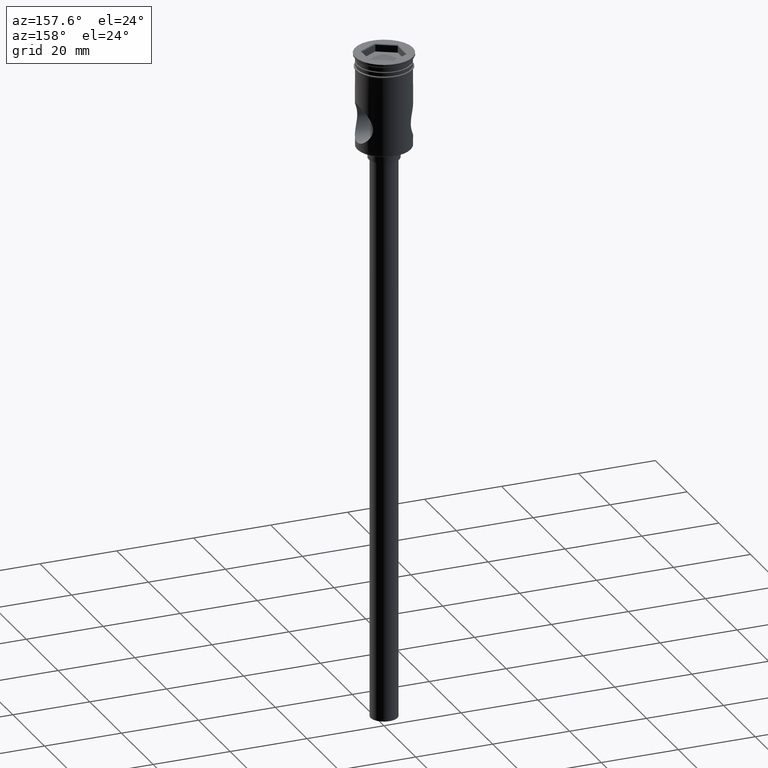
[diagram: clean part render]
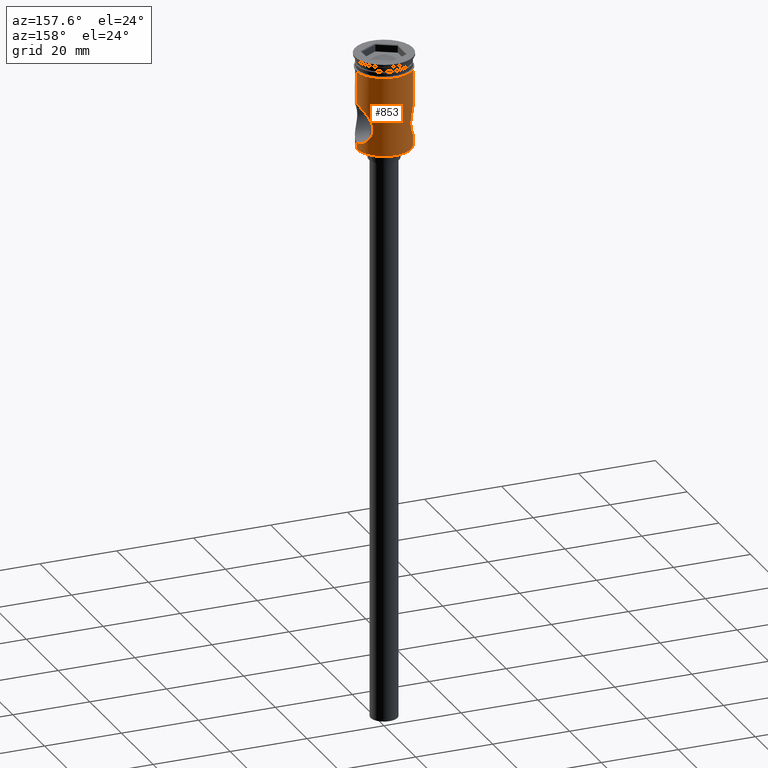
[diagram: same view with one face highlighted and labeled with its STEP entity id]
A machine part, auxiliary view. The second image highlights one B-rep face of the part: STEP entity #853.
In plain terms, the highlighted cylindrical surface (edge-blend (fillet) strip) has radius 7 mm, axis along (-0, -0, 1).
Its self-contained STEP definition (entity closure, byte-faithful):
#2 = CARTESIAN_POINT ( 'NONE',  ( 5.511313949235637999, 4.316828484673398414, -14.97205977871709415 ) ) ;
#39 = VERTEX_POINT ( 'NONE', #1285 ) ;
#46 = LINE ( 'NONE', #748, #955 ) ;
#48 = CARTESIAN_POINT ( 'NONE',  ( 0.000000000000000000, 0.000000000000000000, -3.799999999999998490 ) ) ;
#60 = DIRECTION ( 'NONE',  ( -0.000000000000000000, -0.000000000000000000, 1.000000000000000000 ) ) ;
#75 = CARTESIAN_POINT ( 'NONE',  ( 6.878409767648492767, 1.341070845160087455, -22.32854432384573684 ) ) ;
#80 = EDGE_CURVE ( 'NONE', #1168, #367, #1132, .T. ) ;
#92 = CARTESIAN_POINT ( 'NONE',  ( 6.999999999999997335, 0.3402173002877514896, -12.50000000000000178 ) ) ;
#98 = CARTESIAN_POINT ( 'NONE',  ( -5.220660888952586731, 4.663868933387905535, -19.30946716320038448 ) ) ;
#106 = CARTESIAN_POINT ( 'NONE',  ( -5.766850669963372589, 3.973799787454027399, -14.44906282454845936 ) ) ;
#121 = DIRECTION ( 'NONE',  ( -0.000000000000000000, -0.000000000000000000, 1.000000000000000000 ) ) ;
#149 = B_SPLINE_CURVE_WITH_KNOTS ( 'NONE', 3,
 ( #317, #788, #1133, #75, #1018, #1325, #1113, #532, #417, #992, #1451, #444, #905, #1353, #321, #769, #1348, #678, #1246, #212, #1229, #1342, #547, #311, #777, #1466, #781, #1235, #1240, #2, #328, #1044, #1394, #472, #909, #917, #586, #795, #357, #1492, #92, #1367 ),
 .UNSPECIFIED., .F., .F.,
 ( 4, 2, 2, 2, 2, 2, 2, 2, 2, 2, 2, 2, 2, 2, 2, 2, 2, 2, 2, 2, 4 ),
 ( 0.000000000000000000, 0.001017778397128055699, 0.002035556794256111399, 0.003053335191384167098, 0.004071113588512222797, 0.005088891985640278497, 0.006106670382768334196, 0.006615559581332362479, 0.007124448779896391630, 0.007633337978460419913, 0.008142227177024449064, 0.008651116375588475613, 0.009160005574152505631, 0.01017778397128055352, 0.01068667316984457834, 0.01119556236840860142, 0.01221334076553664411, 0.01323111916266468679, 0.01424889755979273122, 0.01526667595692077217, 0.01628445435404881486 ),
 .UNSPECIFIED. ) ;
#178 = AXIS2_PLACEMENT_3D ( 'NONE', #188, #665, #987 ) ;
#185 = EDGE_CURVE ( 'NONE', #500, #367, #46, .T. ) ;
#188 = CARTESIAN_POINT ( 'NONE',  ( 0.000000000000000000, 0.000000000000000000, -24.29999999999999361 ) ) ;
#190 = ORIENTED_EDGE ( 'NONE', *, *, #1077, .F. ) ;
#199 = ORIENTED_EDGE ( 'NONE', *, *, #612, .T. ) ;
#212 = CARTESIAN_POINT ( 'NONE',  ( 4.907798977527274786, 4.991404953799127853, -17.83934536331389609 ) ) ;
#213 = CARTESIAN_POINT ( 'NONE',  ( -6.464316942199904936, 2.689506414539494905, -13.28192429162108112 ) ) ;
#219 = CARTESIAN_POINT ( 'NONE',  ( -4.899114737268973840, 4.999867480858277702, -17.67548696206737446 ) ) ;
#225 = CARTESIAN_POINT ( 'NONE',  ( -6.805936086033878674, 1.666627172151767367, -22.22542051994379975 ) ) ;
#234 = CARTESIAN_POINT ( 'NONE',  ( -5.385323867458159164, 4.475062125113562495, -19.75326393182406903 ) ) ;
#283 = VECTOR ( 'NONE', #780, 1000.000000000000000 ) ;
#311 = CARTESIAN_POINT ( 'NONE',  ( 4.943068801648156985, 4.956478286556077251, -16.82026444464511528 ) ) ;
#317 = CARTESIAN_POINT ( 'NONE',  ( 6.999999999999996447, 0.000000000000000000, -22.50000000000000355 ) ) ;
#321 = CARTESIAN_POINT ( 'NONE',  ( 5.167013818061234609, 4.722976424013229035, -19.14947799901278813 ) ) ;
#322 = CARTESIAN_POINT ( 'NONE',  ( -5.169488514657019529, 4.720270986420918469, -19.15718069384215738 ) ) ;
#328 = CARTESIAN_POINT ( 'NONE',  ( 5.574789878013862499, 4.234804902448966679, -14.83709141481580396 ) ) ;
#329 = CARTESIAN_POINT ( 'NONE',  ( -6.161707611671310758, 3.331633962589205744, -13.75836233797496533 ) ) ;
#334 = CARTESIAN_POINT ( 'NONE',  ( -4.898713443770691178, 5.000260666815379729, -17.16047788894091752 ) ) ;
#340 = CARTESIAN_POINT ( 'NONE',  ( -5.036472174957491887, 4.861708977790190289, -18.67976090952791779 ) ) ;
#357 = CARTESIAN_POINT ( 'NONE',  ( 6.877389265331919077, 1.346411915329735587, -12.67290639567982424 ) ) ;
#360 = EDGE_CURVE ( 'NONE', #39, #1259, #425, .T. ) ;
#367 = VERTEX_POINT ( 'NONE', #880 ) ;
#381 = EDGE_CURVE ( 'NONE', #1259, #875, #149, .T. ) ;
#403 = DIRECTION ( 'NONE',  ( 1.000000000000000000, 0.000000000000000000, 0.000000000000000000 ) ) ;
#417 = CARTESIAN_POINT ( 'NONE',  ( 6.162478002351688744, 3.330174978408510178, -21.24288214826860255 ) ) ;
#424 = ORIENTED_EDGE ( 'NONE', *, *, #80, .F. ) ;
#425 = LINE ( 'NONE', #671, #933 ) ;
#444 = CARTESIAN_POINT ( 'NONE',  ( 5.507665137062537575, 4.325854713192930134, -20.02701862118371778 ) ) ;
#445 = CARTESIAN_POINT ( 'NONE',  ( -5.067898708447169831, 4.829642785058294585, -16.16266470123420618 ) ) ;
#451 = CARTESIAN_POINT ( 'NONE',  ( -6.877725454229275392, 1.345421322269137576, -12.67242512543099231 ) ) ;
#462 = CARTESIAN_POINT ( 'NONE',  ( -6.293637646572689093, 3.077855022031981580, -21.45331948693545954 ) ) ;
#472 = CARTESIAN_POINT ( 'NONE',  ( 6.163412594259888522, 3.328521687271349894, -13.75554919995812675 ) ) ;
#477 = CIRCLE ( 'NONE', #178, 6.999999999999996447 ) ;
#500 = VERTEX_POINT ( 'NONE', #514 ) ;
#514 = CARTESIAN_POINT ( 'NONE',  ( -6.999999999999996447, 8.572533153570467989E-16, -12.50000000000000000 ) ) ;
#518 = DIRECTION ( 'NONE',  ( -0.000000000000000000, -0.000000000000000000, 1.000000000000000000 ) ) ;
#532 = CARTESIAN_POINT ( 'NONE',  ( 6.288925692808939871, 3.087718830034457795, -21.44587702701452514 ) ) ;
#547 = CARTESIAN_POINT ( 'NONE',  ( 4.908080539807011533, 4.991127287266563961, -17.15741302911732546 ) ) ;
#548 = CARTESIAN_POINT ( 'NONE',  ( -6.975075911005133023, 0.6793982586713426253, -12.53471494170770306 ) ) ;
#568 = CARTESIAN_POINT ( 'NONE',  ( -5.510292512720397440, 4.322635034373780272, -20.03289028278534190 ) ) ;
#577 = CARTESIAN_POINT ( 'NONE',  ( -6.878322084194203434, 1.341499001965813509, -22.32841954660989003 ) ) ;
#586 = CARTESIAN_POINT ( 'NONE',  ( 6.627237468456898206, 2.276106889563763946, -13.03576710784931514 ) ) ;
#610 = ORIENTED_EDGE ( 'NONE', *, *, #381, .F. ) ;
#612 = EDGE_CURVE ( 'NONE', #39, #1494, #477, .T. ) ;
#622 = CARTESIAN_POINT ( 'NONE',  ( -6.999999999999996447, 8.572527594031468259E-16, 0.000000000000000000 ) ) ;
#648 = VECTOR ( 'NONE', #1090, 1000.000000000000000 ) ;
#654 = ORIENTED_EDGE ( 'NONE', *, *, #185, .T. ) ;
#661 = CARTESIAN_POINT ( 'NONE',  ( 6.999999999999996447, 0.000000000000000000, 0.000000000000000000 ) ) ;
#665 = DIRECTION ( 'NONE',  ( -0.000000000000000000, -0.000000000000000000, 1.000000000000000000 ) ) ;
#671 = CARTESIAN_POINT ( 'NONE',  ( 6.999999999999996447, 0.000000000000000000, 0.000000000000000000 ) ) ;
#678 = CARTESIAN_POINT ( 'NONE',  ( 4.968992574149714514, 4.930653397323763620, -18.34649837096316460 ) ) ;
#679 = CARTESIAN_POINT ( 'NONE',  ( -5.508043593449563957, 4.325402544629331381, -14.97211645318934004 ) ) ;
#684 = CARTESIAN_POINT ( 'NONE',  ( -4.908461367085028115, 4.990754227678548816, -17.84806495844127383 ) ) ;
#695 = AXIS2_PLACEMENT_3D ( 'NONE', #1401, #121, #705 ) ;
#701 = EDGE_CURVE ( 'NONE', #500, #760, #1074, .T. ) ;
#705 = DIRECTION ( 'NONE',  ( 1.000000000000000000, 0.000000000000000000, 0.000000000000000000 ) ) ;
#730 = CARTESIAN_POINT ( 'NONE',  ( -6.999999999999996447, 0.000000000000000000, -22.50000000000000355 ) ) ;
#741 = LINE ( 'NONE', #622, #648 ) ;
#748 = CARTESIAN_POINT ( 'NONE',  ( -6.999999999999996447, 8.572527594031468259E-16, 0.000000000000000000 ) ) ;
#760 = VERTEX_POINT ( 'NONE', #730 ) ;
#769 = CARTESIAN_POINT ( 'NONE',  ( 5.075160898063482584, 4.821543316883922792, -18.83416791088078668 ) ) ;
#777 = CARTESIAN_POINT ( 'NONE',  ( 4.969341922738349737, 4.930306376958238701, -16.65122617411555339 ) ) ;
#780 = DIRECTION ( 'NONE',  ( -0.000000000000000000, -0.000000000000000000, 1.000000000000000000 ) ) ;
#781 = CARTESIAN_POINT ( 'NONE',  ( 5.163543367690774488, 4.729261221067855736, -15.84511468902912590 ) ) ;
#782 = CARTESIAN_POINT ( 'NONE',  ( -6.624517184282109561, 2.266908297124829108, -13.04044276553849002 ) ) ;
#788 = CARTESIAN_POINT ( 'NONE',  ( 6.999999999999996447, 0.3448249822885355309, -22.50000000000000355 ) ) ;
#789 = CARTESIAN_POINT ( 'NONE',  ( -5.904538784229269588, 3.768631959499706863, -20.80097026480864031 ) ) ;
#795 = CARTESIAN_POINT ( 'NONE',  ( 6.806176255248581164, 1.666404458266062649, -12.77420545626974224 ) ) ;
#796 = CARTESIAN_POINT ( 'NONE',  ( -5.381635726961874866, 4.479484118326246822, -15.25543733555521264 ) ) ;
#801 = CARTESIAN_POINT ( 'NONE',  ( -6.629571276977945793, 2.268743445522608759, -21.96766699740016193 ) ) ;
#808 = CARTESIAN_POINT ( 'NONE',  ( -5.900022963542600252, 3.775732323944060553, -14.20705562262494759 ) ) ;
#853 = ADVANCED_FACE ( 'NONE', ( #1301 ), #942, .T. ) ;
#875 = VERTEX_POINT ( 'NONE', #1287 ) ;
#880 = CARTESIAN_POINT ( 'NONE',  ( -7.000000000000000000, 8.572527594031472204E-16, -3.799999999999998490 ) ) ;
#884 = CARTESIAN_POINT ( 'NONE',  ( -6.999999999999996447, 8.572527594031468259E-16, -24.29999999999999361 ) ) ;
#901 = CARTESIAN_POINT ( 'NONE',  ( -6.673734349475702210, 2.118082564557161263, -12.96778522737479733 ) ) ;
#905 = CARTESIAN_POINT ( 'NONE',  ( 5.383875121910168815, 4.476817073581178086, -19.74995831670789670 ) ) ;
#906 = CARTESIAN_POINT ( 'NONE',  ( -4.934803760294868447, 4.965557229327412614, -16.82386648148100150 ) ) ;
#909 = CARTESIAN_POINT ( 'NONE',  ( 6.290874603390947506, 3.083386249848239835, -13.55108393410666956 ) ) ;
#917 = CARTESIAN_POINT ( 'NONE',  ( 6.522179950175094554, 2.558034936992928277, -13.19213903168321522 ) ) ;
#918 = CARTESIAN_POINT ( 'NONE',  ( -6.525356721813722949, 2.550056080968596373, -21.81267208194016760 ) ) ;
#933 = VECTOR ( 'NONE', #60, 1000.000000000000000 ) ;
#942 = CYLINDRICAL_SURFACE ( 'NONE', #695, 6.999999999999996447 ) ;
#955 = VECTOR ( 'NONE', #1094, 1000.000000000000000 ) ;
#987 = DIRECTION ( 'NONE',  ( -1.000000000000000000, 0.000000000000000000, 0.000000000000000000 ) ) ;
#992 = CARTESIAN_POINT ( 'NONE',  ( 5.901369065369745037, 3.773598239158957757, -20.79532828289721635 ) ) ;
#1008 = AXIS2_PLACEMENT_3D ( 'NONE', #48, #518, #403 ) ;
#1018 = CARTESIAN_POINT ( 'NONE',  ( 6.806291652246979851, 1.665396429013261459, -22.22593952615893897 ) ) ;
#1026 = ORIENTED_EDGE ( 'NONE', *, *, #1435, .T. ) ;
#1031 = CARTESIAN_POINT ( 'NONE',  ( -5.771108096911676810, 3.967720825599827972, -20.55906820373875732 ) ) ;
#1040 = CARTESIAN_POINT ( 'NONE',  ( -6.974619610468724140, 0.6823602827348922428, -22.46463889269961456 ) ) ;
#1044 = CARTESIAN_POINT ( 'NONE',  ( 5.768304064841209389, 3.971660509004134809, -14.44639040140507724 ) ) ;
#1074 = B_SPLINE_CURVE_WITH_KNOTS ( 'NONE', 3,
 ( #1151, #1142, #548, #451, #1248, #901, #782, #1361, #213, #1473, #329, #808, #106, #679, #796, #1253, #445, #906, #334, #219, #684, #1258, #1146, #340, #1354, #322, #98, #234, #568, #1031, #789, #1486, #462, #918, #801, #225, #577, #1040, #1467, #1493 ),
 .UNSPECIFIED., .F., .F.,
 ( 4, 2, 2, 2, 2, 2, 2, 2, 2, 2, 2, 2, 2, 2, 2, 2, 2, 2, 2, 4 ),
 ( 0.01628445435404881486, 0.01730075665134460025, 0.01831705894864038217, 0.01882521009728827660, 0.01933336124593617103, 0.02034966354323195642, 0.02136596584052773834, 0.02238226813782352373, 0.02339857043511930912, 0.02441487273241509451, 0.02492302388106299241, 0.02543117502971088684, 0.02593932617835878474, 0.02644747732700668263, 0.02746377962430248537, 0.02848008192159828811, 0.02949638421889409085, 0.03051268651618989358, 0.03152898881348569632, 0.03254529111078149906 ),
 .UNSPECIFIED. ) ;
#1077 = EDGE_CURVE ( 'NONE', #875, #1168, #1463, .T. ) ;
#1090 = DIRECTION ( 'NONE',  ( -0.000000000000000000, -0.000000000000000000, 1.000000000000000000 ) ) ;
#1094 = DIRECTION ( 'NONE',  ( -0.000000000000000000, -0.000000000000000000, 1.000000000000000000 ) ) ;
#1113 = CARTESIAN_POINT ( 'NONE',  ( 6.523396179854662691, 2.555366162349213877, -21.80976297051136470 ) ) ;
#1132 = CIRCLE ( 'NONE', #1008, 6.999999999999999112 ) ;
#1133 = CARTESIAN_POINT ( 'NONE',  ( 6.974683072853315124, 0.6817536040784990536, -22.46472792027995879 ) ) ;
#1140 = CARTESIAN_POINT ( 'NONE',  ( 6.999999999999999112, 0.000000000000000000, -3.799999999999998490 ) ) ;
#1142 = CARTESIAN_POINT ( 'NONE',  ( -6.999999999999999112, 0.3397238778479505505, -12.50000000000000533 ) ) ;
#1146 = CARTESIAN_POINT ( 'NONE',  ( -4.969884412147624886, 4.929758116149196567, -18.35178336719908287 ) ) ;
#1151 = CARTESIAN_POINT ( 'NONE',  ( -6.999999999999996447, 8.572533153570467989E-16, -12.50000000000000000 ) ) ;
#1168 = VERTEX_POINT ( 'NONE', #1140 ) ;
#1182 = ORIENTED_EDGE ( 'NONE', *, *, #701, .F. ) ;
#1229 = CARTESIAN_POINT ( 'NONE',  ( 4.898875233353443548, 5.000102145928885911, -17.66716118737664232 ) ) ;
#1235 = CARTESIAN_POINT ( 'NONE',  ( 5.328862411543377142, 4.539851137495588773, -15.39859786766767336 ) ) ;
#1240 = CARTESIAN_POINT ( 'NONE',  ( 5.388400174924766084, 4.469310144529878848, -15.25261112388847806 ) ) ;
#1246 = CARTESIAN_POINT ( 'NONE',  ( 4.943019484790466045, 4.956528279916297741, -18.17978386182895179 ) ) ;
#1248 = CARTESIAN_POINT ( 'NONE',  ( -6.806988922152785726, 1.662804102803706163, -12.77304955625404048 ) ) ;
#1253 = CARTESIAN_POINT ( 'NONE',  ( -5.162336326394759922, 4.730545921691760469, -15.84900793347695647 ) ) ;
#1258 = CARTESIAN_POINT ( 'NONE',  ( -4.943863480480452210, 4.955687100658114019, -18.18552340350770891 ) ) ;
#1259 = VERTEX_POINT ( 'NONE', #1280 ) ;
#1267 = EDGE_LOOP ( 'NONE', ( #199, #1026, #1182, #654, #424, #190, #610, #1374 ) ) ;
#1280 = CARTESIAN_POINT ( 'NONE',  ( 6.999999999999996447, 0.000000000000000000, -22.50000000000000355 ) ) ;
#1285 = CARTESIAN_POINT ( 'NONE',  ( 6.999999999999996447, 0.000000000000000000, -24.29999999999999361 ) ) ;
#1287 = CARTESIAN_POINT ( 'NONE',  ( 6.999999999999996447, -5.559544561199393959E-22, -12.50000000000000000 ) ) ;
#1301 = FACE_OUTER_BOUND ( 'NONE', #1267, .T. ) ;
#1325 = CARTESIAN_POINT ( 'NONE',  ( 6.629274812495740576, 2.269772407451148055, -21.96723436692712994 ) ) ;
#1342 = CARTESIAN_POINT ( 'NONE',  ( 4.899085609211874193, 4.999896020448773015, -17.32678303492929217 ) ) ;
#1348 = CARTESIAN_POINT ( 'NONE',  ( 5.035064757863625395, 4.863162860794926878, -18.67369050689208265 ) ) ;
#1353 = CARTESIAN_POINT ( 'NONE',  ( 5.218822708204850613, 4.665928648188177874, -19.30420640014511591 ) ) ;
#1354 = CARTESIAN_POINT ( 'NONE',  ( -5.077364955457301932, 4.819225539182824924, -18.84248696074795149 ) ) ;
#1361 = CARTESIAN_POINT ( 'NONE',  ( -6.519877710032068840, 2.552311853721904278, -13.19741610699314016 ) ) ;
#1367 = CARTESIAN_POINT ( 'NONE',  ( 6.999999999999996447, -5.559544561199393959E-22, -12.50000000000000000 ) ) ;
#1374 = ORIENTED_EDGE ( 'NONE', *, *, #360, .F. ) ;
#1394 = CARTESIAN_POINT ( 'NONE',  ( 5.901355755354761534, 3.773686748851627915, -14.20466136214932007 ) ) ;
#1401 = CARTESIAN_POINT ( 'NONE',  ( 0.000000000000000000, 0.000000000000000000, 0.000000000000000000 ) ) ;
#1435 = EDGE_CURVE ( 'NONE', #1494, #760, #741, .T. ) ;
#1451 = CARTESIAN_POINT ( 'NONE',  ( 5.765831995741617533, 3.975245358282917696, -20.54897793578650678 ) ) ;
#1463 = LINE ( 'NONE', #661, #283 ) ;
#1466 = CARTESIAN_POINT ( 'NONE',  ( 5.069539922197811244, 4.827927654831068338, -16.15669568881665441 ) ) ;
#1467 = CARTESIAN_POINT ( 'NONE',  ( -6.999999999999995559, 0.3443248772558980542, -22.50000000000000000 ) ) ;
#1473 = CARTESIAN_POINT ( 'NONE',  ( -6.289754092268240449, 3.085829967940952656, -13.55283859579834527 ) ) ;
#1486 = CARTESIAN_POINT ( 'NONE',  ( -6.165209272184617006, 3.325110483998857003, -21.24734997091469424 ) ) ;
#1492 = CARTESIAN_POINT ( 'NONE',  ( 6.974267267734871822, 0.6862246212768641218, -12.53585319719852720 ) ) ;
#1493 = CARTESIAN_POINT ( 'NONE',  ( -6.999999999999996447, 0.000000000000000000, -22.50000000000000355 ) ) ;
#1494 = VERTEX_POINT ( 'NONE', #884 ) ;